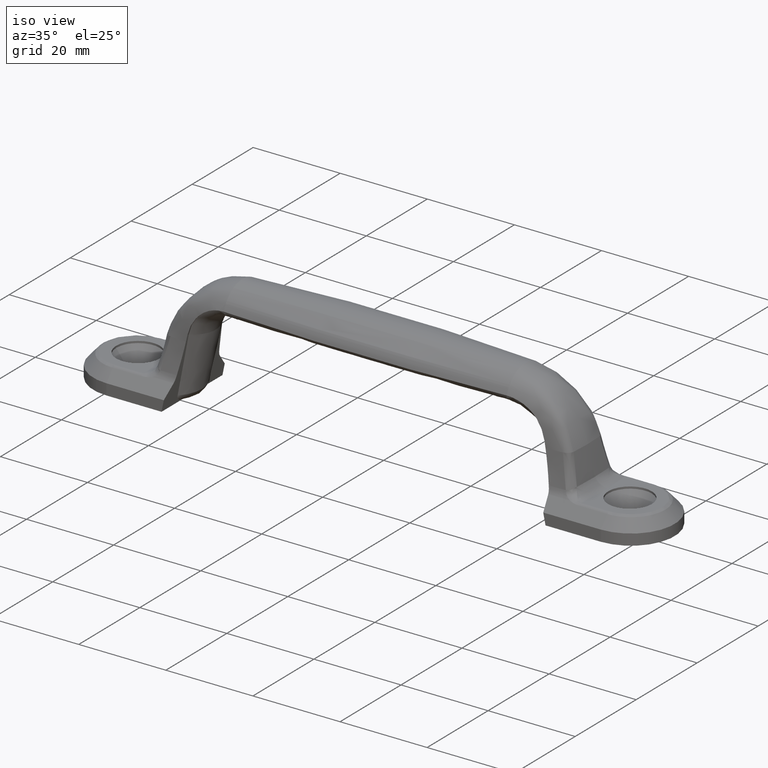
[diagram: clean part render]
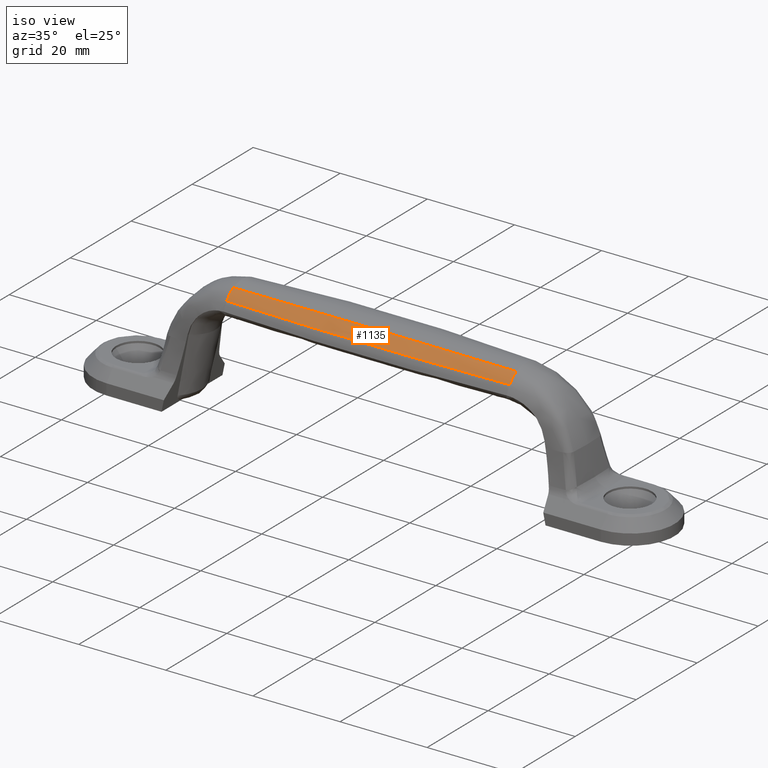
[diagram: same view with one face highlighted and labeled with its STEP entity id]
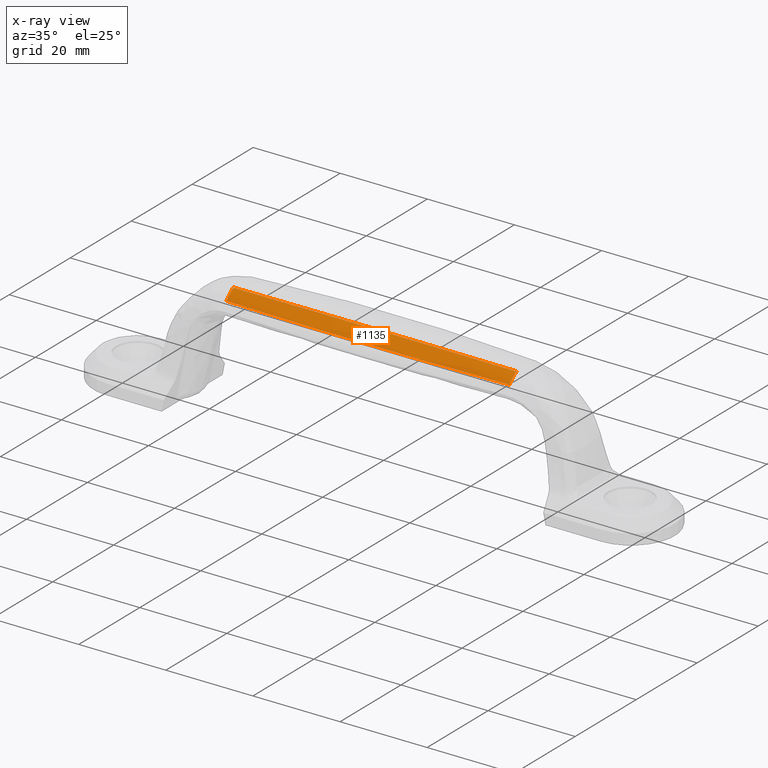
[diagram: x-ray of the same camera — body ghosted, the highlighted face saturated]
A machine part, iso view. The second image highlights one B-rep face of the part: STEP entity #1135.
The next image is the same camera in x-ray: the body ghosted, the highlighted face saturated — about 0% of this face is hidden behind the body in this view.
In plain terms, the highlighted face is a freeform B-spline surface patch.
Its self-contained STEP definition (entity closure, byte-faithful):
#173=FACE_OUTER_BOUND('',#244,.T.);
#244=EDGE_LOOP('',(#746,#747,#748,#749,#750,#751));
#331=B_SPLINE_CURVE_WITH_KNOTS('',3,(#1465,#1466,#1467,#1468,#1469,#1470),
 .UNSPECIFIED.,.F.,.F.,(4,2,4),(0.,0.500078966036565,1.),.UNSPECIFIED.);
#332=B_SPLINE_CURVE_WITH_KNOTS('',3,(#1652,#1653,#1654,#1655),
 .UNSPECIFIED.,.F.,.F.,(4,4),(-1.24084911604125,-1.20932394737796),
 .UNSPECIFIED.);
#333=B_SPLINE_CURVE_WITH_KNOTS('',3,(#1657,#1658,#1659,#1660),
 .UNSPECIFIED.,.F.,.F.,(4,4),(-0.279137287697394,-0.241810773106101),
 .UNSPECIFIED.);
#334=B_SPLINE_CURVE_WITH_KNOTS('',3,(#1662,#1663,#1664,#1665,#1666,#1667,
#1668,#1669,#1670,#1671,#1672,#1673,#1674,#1675,#1676,#1677,#1678,#1679,
#1680,#1681,#1682,#1683,#1684,#1685,#1686,#1687,#1688,#1689),
 .UNSPECIFIED.,.F.,.F.,(4,3,3,3,3,3,3,3,3,4),(-0.643213699019692,-0.63301444263161,
-0.631514593738282,-0.571223606326534,-0.561474232684798,-0.513943022729462,
-0.498386436162403,-0.388662724332843,-0.370313466213393,-0.279137287697394),
 .UNSPECIFIED.);
#335=B_SPLINE_CURVE_WITH_KNOTS('',3,(#1691,#1692,#1693,#1694,#1695,#1696),
 .UNSPECIFIED.,.F.,.F.,(4,2,4),(0.,0.500078966036565,1.),.UNSPECIFIED.);
#336=B_SPLINE_CURVE_WITH_KNOTS('',3,(#1697,#1698,#1699,#1700,#1701,#1702,
#1703,#1704,#1705,#1706,#1707,#1708,#1709,#1710,#1711,#1712,#1713,#1714,
#1715,#1716,#1717,#1718,#1719,#1720,#1721,#1722,#1723,#1724),
 .UNSPECIFIED.,.F.,.F.,(4,3,3,3,3,3,3,3,3,4),(-1.20932394737796,-1.15653111833747,
-1.1441610640321,-1.07019141005032,-1.05970402034835,-1.02766110915708,
-1.02108862101578,-0.98044377403873,-0.979432658922274,-0.972556884731643),
 .UNSPECIFIED.);
#445=VERTEX_POINT('',#1455);
#446=VERTEX_POINT('',#1460);
#447=VERTEX_POINT('',#1651);
#448=VERTEX_POINT('',#1656);
#449=VERTEX_POINT('',#1661);
#450=VERTEX_POINT('',#1690);
#564=EDGE_CURVE('',#445,#446,#331,.T.);
#565=EDGE_CURVE('',#445,#447,#332,.T.);
#566=EDGE_CURVE('',#448,#446,#333,.T.);
#567=EDGE_CURVE('',#449,#448,#334,.T.);
#568=EDGE_CURVE('',#450,#449,#335,.T.);
#569=EDGE_CURVE('',#447,#450,#336,.T.);
#746=ORIENTED_EDGE('',*,*,#565,.F.);
#747=ORIENTED_EDGE('',*,*,#564,.T.);
#748=ORIENTED_EDGE('',*,*,#566,.F.);
#749=ORIENTED_EDGE('',*,*,#567,.F.);
#750=ORIENTED_EDGE('',*,*,#568,.F.);
#751=ORIENTED_EDGE('',*,*,#569,.F.);
#1098=B_SPLINE_SURFACE_WITH_KNOTS('',3,3,((#1471,#1472,#1473,#1474,#1475,
#1476,#1477,#1478,#1479),(#1480,#1481,#1482,#1483,#1484,#1485,#1486,#1487,
#1488),(#1489,#1490,#1491,#1492,#1493,#1494,#1495,#1496,#1497),(#1498,#1499,
#1500,#1501,#1502,#1503,#1504,#1505,#1506),(#1507,#1508,#1509,#1510,#1511,
#1512,#1513,#1514,#1515),(#1516,#1517,#1518,#1519,#1520,#1521,#1522,#1523,
#1524),(#1525,#1526,#1527,#1528,#1529,#1530,#1531,#1532,#1533),(#1534,#1535,
#1536,#1537,#1538,#1539,#1540,#1541,#1542),(#1543,#1544,#1545,#1546,#1547,
#1548,#1549,#1550,#1551),(#1552,#1553,#1554,#1555,#1556,#1557,#1558,#1559,
#1560),(#1561,#1562,#1563,#1564,#1565,#1566,#1567,#1568,#1569),(#1570,#1571,
#1572,#1573,#1574,#1575,#1576,#1577,#1578),(#1579,#1580,#1581,#1582,#1583,
#1584,#1585,#1586,#1587),(#1588,#1589,#1590,#1591,#1592,#1593,#1594,#1595,
#1596),(#1597,#1598,#1599,#1600,#1601,#1602,#1603,#1604,#1605),(#1606,#1607,
#1608,#1609,#1610,#1611,#1612,#1613,#1614),(#1615,#1616,#1617,#1618,#1619,
#1620,#1621,#1622,#1623),(#1624,#1625,#1626,#1627,#1628,#1629,#1630,#1631,
#1632),(#1633,#1634,#1635,#1636,#1637,#1638,#1639,#1640,#1641),(#1642,#1643,
#1644,#1645,#1646,#1647,#1648,#1649,#1650)),.UNSPECIFIED.,.F.,.F.,.F.,(4,
2,2,2,2,2,2,2,2,4),(4,1,1,1,1,1,4),(0.,0.402703619118218,0.442864616248595,
0.683016760124667,0.717065440698619,0.821096937459581,0.842435378736054,
0.974394183646222,0.97767690094786,1.),(0.,0.857142857142857,0.928571428571429,
0.964285714285714,0.982142857142857,0.991071428571429,1.),.UNSPECIFIED.);
#1135=ADVANCED_FACE('',(#173),#1098,.F.);
#1455=CARTESIAN_POINT('',(-32.5,-5.07507610056238,24.2607109973416));
#1460=CARTESIAN_POINT('',(32.5,-5.07502799536452,24.2607864557729));
#1465=CARTESIAN_POINT('Ctrl Pts',(-32.5,-5.07507610056238,24.2607109973416));
#1466=CARTESIAN_POINT('Ctrl Pts',(-21.668378137966,-5.82075768503204,24.4772932472976));
#1467=CARTESIAN_POINT('Ctrl Pts',(-10.8350448046326,-6.19353558371479,24.5855735598226));
#1468=CARTESIAN_POINT('Ctrl Pts',(10.8316229428774,-6.19328404923183,24.5855303168405));
#1469=CARTESIAN_POINT('Ctrl Pts',(21.6649562762108,-5.82049011548313,24.4772751571259));
#1470=CARTESIAN_POINT('Ctrl Pts',(32.5,-5.07502799536452,24.2607864557729));
#1471=CARTESIAN_POINT('Ctrl Pts',(-32.5,-5.07507610056238,24.2607109973416));
#1472=CARTESIAN_POINT('Ctrl Pts',(-13.9344374771483,-6.35318553375218,24.631936226039));
#1473=CARTESIAN_POINT('Ctrl Pts',(6.18370230104813,-6.55097542152328,24.6894077691117));
#1474=CARTESIAN_POINT('Ctrl Pts',(27.0817446118437,-5.4211903647126,24.3613144946305));
#1475=CARTESIAN_POINT('Ctrl Pts',(29.7908417535855,-5.25476607158821,24.3129838276452));
#1476=CARTESIAN_POINT('Ctrl Pts',(31.1454132387087,-5.16656125636377,24.2873684798199));
#1477=CARTESIAN_POINT('Ctrl Pts',(31.9194606342797,-5.11473202804632,24.2723168483961));
#1478=CARTESIAN_POINT('Ctrl Pts',(32.3064865143749,-5.08834192163404,24.2646529360812));
#1479=CARTESIAN_POINT('Ctrl Pts',(32.5,-5.07502799536452,24.2607864557729));
#1480=CARTESIAN_POINT('Ctrl Pts',(-32.5,-5.04173371207766,24.3063462800652));
#1481=CARTESIAN_POINT('Ctrl Pts',(-13.9344374771483,-6.31722405197311,24.6850886618715));
#1482=CARTESIAN_POINT('Ctrl Pts',(6.18370230104812,-6.50949557725588,24.7483837370907));
#1483=CARTESIAN_POINT('Ctrl Pts',(27.0817446118437,-5.38460313676927,24.4122302801106));
#1484=CARTESIAN_POINT('Ctrl Pts',(29.7908417535855,-5.2184749152625,24.3630792737212));
#1485=CARTESIAN_POINT('Ctrl Pts',(31.1454132387087,-5.13046904629267,24.3369919724025));
#1486=CARTESIAN_POINT('Ctrl Pts',(31.9194606342797,-5.07873268625842,24.3216840634606));
#1487=CARTESIAN_POINT('Ctrl Pts',(32.3064865143749,-5.05239557417446,24.31388435012));
#1488=CARTESIAN_POINT('Ctrl Pts',(32.5,-5.0391047484711,24.3099526571025));
#1489=CARTESIAN_POINT('Ctrl Pts',(-32.4999999999997,-4.89311689233879,24.5171092322514));
#1490=CARTESIAN_POINT('Ctrl Pts',(-13.9344374771481,-6.06624624827705,25.0404355499634));
#1491=CARTESIAN_POINT('Ctrl Pts',(6.18370230104794,-6.23346579406163,25.1370373168044));
#1492=CARTESIAN_POINT('Ctrl Pts',(27.0817446118435,-5.16601300837879,24.7170159305337));
#1493=CARTESIAN_POINT('Ctrl Pts',(29.7908417535853,-5.00892192531027,24.6546257400535));
#1494=CARTESIAN_POINT('Ctrl Pts',(31.1454132387084,-4.925732670116,24.6214960180085));
#1495=CARTESIAN_POINT('Ctrl Pts',(31.9194606342794,-4.87685756752391,24.6020013776156));
#1496=CARTESIAN_POINT('Ctrl Pts',(32.3064865143747,-4.85198056326455,24.5920676580817));
#1497=CARTESIAN_POINT('Ctrl Pts',(32.4999999999997,-4.83942908190163,24.5870544216826));
#1498=CARTESIAN_POINT('Ctrl Pts',(-32.4999999999997,-4.5958018772032,24.8414544805143));
#1499=CARTESIAN_POINT('Ctrl Pts',(-13.934437477148,-5.66283733269778,25.4398092396288));
#1500=CARTESIAN_POINT('Ctrl Pts',(6.18370230104794,-5.80460018405846,25.5575723468259));
#1501=CARTESIAN_POINT('Ctrl Pts',(27.0817446118435,-4.81102928860422,25.0813851371172));
#1502=CARTESIAN_POINT('Ctrl Pts',(29.7908417535853,-4.66518160374403,25.0107473476606));
#1503=CARTESIAN_POINT('Ctrl Pts',(31.1454132387084,-4.58799258796904,24.9731886350253));
#1504=CARTESIAN_POINT('Ctrl Pts',(31.9194606342794,-4.54266686952282,24.951089439009));
#1505=CARTESIAN_POINT('Ctrl Pts',(32.3064865143747,-4.51959745740989,24.9398267321431));
#1506=CARTESIAN_POINT('Ctrl Pts',(32.4999999999997,-4.50796143966611,24.9341422851123));
#1507=CARTESIAN_POINT('Ctrl Pts',(-32.4999999999997,-4.56755498308583,24.8716086540736));
#1508=CARTESIAN_POINT('Ctrl Pts',(-13.934437477148,-5.62612797963354,25.4761368286468));
#1509=CARTESIAN_POINT('Ctrl Pts',(6.18370230104795,-5.76537381453385,25.5953489486279));
#1510=CARTESIAN_POINT('Ctrl Pts',(27.0817446118435,-4.77795691245379,25.1148047035937));
#1511=CARTESIAN_POINT('Ctrl Pts',(29.7908417535853,-4.63296403129764,25.0435413501402));
#1512=CARTESIAN_POINT('Ctrl Pts',(31.1454132387084,-4.55623559887364,25.0056486421688));
#1513=CARTESIAN_POINT('Ctrl Pts',(31.9194606342794,-4.51117715003219,24.9833545807057));
#1514=CARTESIAN_POINT('Ctrl Pts',(32.3064865143747,-4.488245246987,24.9719918546359));
#1515=CARTESIAN_POINT('Ctrl Pts',(32.4999999999997,-4.47667788795121,24.9662573477211));
#1516=CARTESIAN_POINT('Ctrl Pts',(-32.4999999999997,-4.36238590655552,25.0867169765621));
#1517=CARTESIAN_POINT('Ctrl Pts',(-13.934437477148,-5.35457510934838,25.7343723356362));
#1518=CARTESIAN_POINT('Ctrl Pts',(6.1837023010479,-5.48073932043276,25.86114707891));
#1519=CARTESIAN_POINT('Ctrl Pts',(27.0817446118435,-4.53854853578098,25.3504906695955));
#1520=CARTESIAN_POINT('Ctrl Pts',(29.7908417535853,-4.40063289109933,25.2744836196896));
#1521=CARTESIAN_POINT('Ctrl Pts',(31.1454132387084,-4.32765853785778,25.2340808673203));
#1522=CARTESIAN_POINT('Ctrl Pts',(31.9194606342794,-4.28483098433276,25.2102933870211));
#1523=CARTESIAN_POINT('Ctrl Pts',(32.3064865143747,-4.26303278118869,25.1981725806074));
#1524=CARTESIAN_POINT('Ctrl Pts',(32.4999999999997,-4.25204099089454,25.1920528477446));
#1525=CARTESIAN_POINT('Ctrl Pts',(-32.4999999999997,-4.14142375767856,25.2946081605217));
#1526=CARTESIAN_POINT('Ctrl Pts',(-13.9344374771481,-5.10443412507045,25.9407515765121));
#1527=CARTESIAN_POINT('Ctrl Pts',(6.18370230104794,-5.22290638691858,26.0669823052151));
#1528=CARTESIAN_POINT('Ctrl Pts',(27.0817446118434,-4.30254441891716,25.554198397102));
#1529=CARTESIAN_POINT('Ctrl Pts',(29.7908417535852,-4.16776584087077,25.4780312599691));
#1530=CARTESIAN_POINT('Ctrl Pts',(31.1454132387084,-4.09647311150319,25.4375412323539));
#1531=CARTESIAN_POINT('Ctrl Pts',(31.9194606342794,-4.05462878232406,25.4137118877975));
#1532=CARTESIAN_POINT('Ctrl Pts',(32.3064865143746,-4.03333398851747,25.4015683529567));
#1533=CARTESIAN_POINT('Ctrl Pts',(32.4999999999997,-4.02259507248451,25.3954386457257));
#1534=CARTESIAN_POINT('Ctrl Pts',(-32.4999999999996,-3.8538065553924,25.5225325422643));
#1535=CARTESIAN_POINT('Ctrl Pts',(-13.9344374771479,-4.798145535602,26.1597262078394));
#1536=CARTESIAN_POINT('Ctrl Pts',(6.18370230104786,-4.91554011111485,26.2803265012234));
#1537=CARTESIAN_POINT('Ctrl Pts',(27.0817446118434,-4.01945725793065,25.7639594025546));
#1538=CARTESIAN_POINT('Ctrl Pts',(29.7908417535852,-3.88803544787158,25.6874536431348));
#1539=CARTESIAN_POINT('Ctrl Pts',(31.1454132387083,-3.81851851192134,25.6468010650476));
#1540=CARTESIAN_POINT('Ctrl Pts',(31.9194606342793,-3.77770448531745,25.6228873493495));
#1541=CARTESIAN_POINT('Ctrl Pts',(32.3064865143746,-3.75693521146418,25.6107018237375));
#1542=CARTESIAN_POINT('Ctrl Pts',(32.4999999999996,-3.74645957576353,25.6045521925117));
#1543=CARTESIAN_POINT('Ctrl Pts',(-32.4999999999996,-3.81754354589619,25.5506589602592));
#1544=CARTESIAN_POINT('Ctrl Pts',(-13.934437477148,-4.75892730231572,26.1871793000253));
#1545=CARTESIAN_POINT('Ctrl Pts',(6.18370230104788,-4.87660513051316,26.3068156416537));
#1546=CARTESIAN_POINT('Ctrl Pts',(27.0817446118434,-3.98389773795108,25.789766486099));
#1547=CARTESIAN_POINT('Ctrl Pts',(29.7908417535852,-3.85299689530265,25.713152958301));
#1548=CARTESIAN_POINT('Ctrl Pts',(31.1454132387083,-3.78375144011567,25.6724480969149));
#1549=CARTESIAN_POINT('Ctrl Pts',(31.9194606342793,-3.74309837489162,25.6485032322688));
#1550=CARTESIAN_POINT('Ctrl Pts',(32.3064865143746,-3.72241038683334,25.6363024163883));
#1551=CARTESIAN_POINT('Ctrl Pts',(32.4999999999996,-3.71197605119927,25.6301449333602));
#1552=CARTESIAN_POINT('Ctrl Pts',(-32.4999999999996,-3.66840183165841,25.6636956040949));
#1553=CARTESIAN_POINT('Ctrl Pts',(-13.934437477148,-4.60042613977692,26.295848558825));
#1554=CARTESIAN_POINT('Ctrl Pts',(6.18370230104788,-4.71883544027294,26.4119660421296));
#1555=CARTESIAN_POINT('Ctrl Pts',(27.0817446118434,-3.83954767637493,25.8923259558678));
#1556=CARTESIAN_POINT('Ctrl Pts',(29.7908417535852,-3.7105559509194,25.8154053245605));
#1557=CARTESIAN_POINT('Ctrl Pts',(31.1454132387083,-3.64231264680933,25.7745506864613));
#1558=CARTESIAN_POINT('Ctrl Pts',(31.9194606342793,-3.6022444069357,25.7505222373118));
#1559=CARTESIAN_POINT('Ctrl Pts',(32.3064865143746,-3.58185350229728,25.7382799125096));
#1560=CARTESIAN_POINT('Ctrl Pts',(32.4999999999996,-3.5715686274327,25.7321018979335));
#1561=CARTESIAN_POINT('Ctrl Pts',(-32.4999999999997,-3.55126698623695,25.7464213599264));
#1562=CARTESIAN_POINT('Ctrl Pts',(-13.934437477148,-4.47738266775418,26.3749132463242));
#1563=CARTESIAN_POINT('Ctrl Pts',(6.1837023010479,-4.59773565995078,26.4876574986917));
#1564=CARTESIAN_POINT('Ctrl Pts',(27.0817446118434,-3.72932643793442,25.9655679367751));
#1565=CARTESIAN_POINT('Ctrl Pts',(29.7908417535852,-3.60190022927964,25.8883300003806));
#1566=CARTESIAN_POINT('Ctrl Pts',(31.1454132387084,-3.53447246814034,25.8473209308478));
#1567=CARTESIAN_POINT('Ctrl Pts',(31.9194606342794,-3.49488126004612,25.8232043287913));
#1568=CARTESIAN_POINT('Ctrl Pts',(32.3064865143746,-3.47473185467436,25.8109184075808));
#1569=CARTESIAN_POINT('Ctrl Pts',(32.4999999999997,-3.46456874773853,25.8047185405992));
#1570=CARTESIAN_POINT('Ctrl Pts',(-32.4999999999997,-3.40806840890203,25.8404599149579));
#1571=CARTESIAN_POINT('Ctrl Pts',(-13.934437477148,-4.32951878482437,26.4641624189154));
#1572=CARTESIAN_POINT('Ctrl Pts',(6.18370230104791,-4.45335264261645,26.5727409246367));
#1573=CARTESIAN_POINT('Ctrl Pts',(27.0817446118434,-3.59842650362318,26.0473244781119));
#1574=CARTESIAN_POINT('Ctrl Pts',(29.7908417535852,-3.47288496169583,25.9696762164579));
#1575=CARTESIAN_POINT('Ctrl Pts',(31.1454132387084,-3.40643662840475,25.9284656073516));
#1576=CARTESIAN_POINT('Ctrl Pts',(31.9194606342794,-3.36741492249587,25.9042353036865));
#1577=CARTESIAN_POINT('Ctrl Pts',(32.3064865143746,-3.34755385540617,25.8918928481153));
#1578=CARTESIAN_POINT('Ctrl Pts',(32.4999999999997,-3.33753569365922,25.8856648592488));
#1579=CARTESIAN_POINT('Ctrl Pts',(-32.4999999999997,-3.38358564539485,25.8562968991055));
#1580=CARTESIAN_POINT('Ctrl Pts',(-13.934437477148,-4.30431438408845,26.4791757086978));
#1581=CARTESIAN_POINT('Ctrl Pts',(6.1837023010479,-4.42882925707208,26.5870109888866));
#1582=CARTESIAN_POINT('Ctrl Pts',(27.0817446118434,-3.57620785734088,26.061018801933));
#1583=CARTESIAN_POINT('Ctrl Pts',(29.7908417535852,-3.45099110854746,25.983297678538));
#1584=CARTESIAN_POINT('Ctrl Pts',(31.1454132387084,-3.38471111530679,25.9420513918318));
#1585=CARTESIAN_POINT('Ctrl Pts',(31.9194606342794,-3.34578745565071,25.9178008329393));
#1586=CARTESIAN_POINT('Ctrl Pts',(32.3064865143746,-3.32597596392231,25.905448327674));
#1587=CARTESIAN_POINT('Ctrl Pts',(32.4999999999997,-3.31598275397107,25.8992153201816));
#1588=CARTESIAN_POINT('Ctrl Pts',(-32.4999999999997,-3.20823889880717,25.968049710304));
#1589=CARTESIAN_POINT('Ctrl Pts',(-13.9344374771481,-4.1237627915626,26.5853565596351));
#1590=CARTESIAN_POINT('Ctrl Pts',(6.18370230104793,-4.25309879114431,26.688053034025));
#1591=CARTESIAN_POINT('Ctrl Pts',(27.0817446118435,-3.41722970047828,26.1577625350397));
#1592=CARTESIAN_POINT('Ctrl Pts',(29.7908417535853,-3.29436009784924,26.0794988581493));
#1593=CARTESIAN_POINT('Ctrl Pts',(31.1454132387084,-3.22929755908397,26.0379852034872));
#1594=CARTESIAN_POINT('Ctrl Pts',(31.9194606342794,-3.19108211131287,26.0135829168977));
#1595=CARTESIAN_POINT('Ctrl Pts',(32.3064865143747,-3.17162892058814,26.0011549206802));
#1596=CARTESIAN_POINT('Ctrl Pts',(32.4999999999997,-3.16181589800852,25.9948842535606));
#1597=CARTESIAN_POINT('Ctrl Pts',(-32.5,-3.0604354914504,26.0531109134454));
#1598=CARTESIAN_POINT('Ctrl Pts',(-13.9344374771484,-3.97025116363031,26.6680258344513));
#1599=CARTESIAN_POINT('Ctrl Pts',(6.18370230104816,-4.10366891889554,26.7671953685982));
#1600=CARTESIAN_POINT('Ctrl Pts',(27.0817446118438,-3.28352642220966,26.2322788175925));
#1601=CARTESIAN_POINT('Ctrl Pts',(29.7908417535856,-3.16287023620671,26.1533975498812));
#1602=CARTESIAN_POINT('Ctrl Pts',(31.1454132387087,-3.09895733015402,26.111571564065));
#1603=CARTESIAN_POINT('Ctrl Pts',(31.9194606342797,-3.06141129339884,26.0869895416092));
#1604=CARTESIAN_POINT('Ctrl Pts',(32.306486514375,-3.04229687366648,26.0744713571231));
#1605=CARTESIAN_POINT('Ctrl Pts',(32.5,-3.03265429137559,26.0681554772944));
#1606=CARTESIAN_POINT('Ctrl Pts',(-32.5,-2.92020633264454,26.1276897215886));
#1607=CARTESIAN_POINT('Ctrl Pts',(-13.9344374771483,-3.82339070707217,26.7417040866983));
#1608=CARTESIAN_POINT('Ctrl Pts',(6.18370230104811,-3.96058052632355,26.8381049574679));
#1609=CARTESIAN_POINT('Ctrl Pts',(27.0817446118437,-3.15663159278499,26.2983312593929));
#1610=CARTESIAN_POINT('Ctrl Pts',(29.7908417535855,-3.03826012713785,26.2187898350224));
#1611=CARTESIAN_POINT('Ctrl Pts',(31.1454132387087,-2.97553544997873,26.1766263981483));
#1612=CARTESIAN_POINT('Ctrl Pts',(31.9194606342797,-2.93868164473687,26.1518493792651));
#1613=CARTESIAN_POINT('Ctrl Pts',(32.3064865143749,-2.91991770009606,26.1392329906653));
#1614=CARTESIAN_POINT('Ctrl Pts',(32.5,-2.91045146645269,26.1328678280024));
#1615=CARTESIAN_POINT('Ctrl Pts',(-32.5,-2.91680956988872,26.1294927478211));
#1616=CARTESIAN_POINT('Ctrl Pts',(-13.9344374771483,-3.81983339462369,26.7434859981527));
#1617=CARTESIAN_POINT('Ctrl Pts',(6.18370230104813,-3.95711386963441,26.8398206598798));
#1618=CARTESIAN_POINT('Ctrl Pts',(27.0817446118437,-3.15355795455472,26.2999287158047));
#1619=CARTESIAN_POINT('Ctrl Pts',(29.7908417535855,-3.03524185235247,26.2203712342408));
#1620=CARTESIAN_POINT('Ctrl Pts',(31.1454132387087,-2.97254597528006,26.1781995827235));
#1621=CARTESIAN_POINT('Ctrl Pts',(31.9194606342797,-2.93570894289362,26.1534178173261));
#1622=CARTESIAN_POINT('Ctrl Pts',(32.3064865143749,-2.91695349153441,26.1407990379764));
#1623=CARTESIAN_POINT('Ctrl Pts',(32.5,-2.90749153059265,26.1344326754983));
#1624=CARTESIAN_POINT('Ctrl Pts',(-32.5,-2.89036722969669,26.1434970607677));
#1625=CARTESIAN_POINT('Ctrl Pts',(-13.9344374771483,-3.79213205032792,26.75733326375));
#1626=CARTESIAN_POINT('Ctrl Pts',(6.18370230104809,-3.93012072163987,26.8531530242102));
#1627=CARTESIAN_POINT('Ctrl Pts',(27.0817446118437,-3.12963031679331,26.3123395760022));
#1628=CARTESIAN_POINT('Ctrl Pts',(29.7908417535855,-3.01174649126641,26.2326568228424));
#1629=CARTESIAN_POINT('Ctrl Pts',(31.1454132387087,-2.94927546469174,26.1904210902017));
#1630=CARTESIAN_POINT('Ctrl Pts',(31.9194606342797,-2.91256941066156,26.1656022918327));
#1631=CARTESIAN_POINT('Ctrl Pts',(32.3064865143749,-2.89388027796249,26.1529648583415));
#1632=CARTESIAN_POINT('Ctrl Pts',(32.5,-2.88445168423404,26.1465891341345));
#1633=CARTESIAN_POINT('Ctrl Pts',(-32.5,-2.86763437675816,26.1553584903518));
#1634=CARTESIAN_POINT('Ctrl Pts',(-13.9344374771484,-3.76828362078611,26.7690997586281));
#1635=CARTESIAN_POINT('Ctrl Pts',(6.18370230104815,-3.90687919281193,26.8644923684886));
#1636=CARTESIAN_POINT('Ctrl Pts',(27.0817446118437,-3.10905932649309,26.3228733509483));
#1637=CARTESIAN_POINT('Ctrl Pts',(29.7908417535855,-2.99155227828477,26.2430806493757));
#1638=CARTESIAN_POINT('Ctrl Pts',(31.1454132387087,-2.92927726806012,26.200788591167));
#1639=CARTESIAN_POINT('Ctrl Pts',(31.9194606342797,-2.89268540836124,26.1759372129243));
#1640=CARTESIAN_POINT('Ctrl Pts',(32.3064865143749,-2.87405409894338,26.1632833612428));
#1641=CARTESIAN_POINT('Ctrl Pts',(32.5,-2.86465459922658,26.1568993947281));
#1642=CARTESIAN_POINT('Ctrl Pts',(-32.5,-2.84525939019083,26.166870503008));
#1643=CARTESIAN_POINT('Ctrl Pts',(-13.9344374771483,-3.74477987827845,26.7805538467098));
#1644=CARTESIAN_POINT('Ctrl Pts',(6.18370230104813,-3.88396987783578,26.8755416920095));
#1645=CARTESIAN_POINT('Ctrl Pts',(27.0817446118437,-3.08881149355975,26.3331176668002));
#1646=CARTESIAN_POINT('Ctrl Pts',(29.7908417535855,-2.97168003722736,26.2532148585233));
#1647=CARTESIAN_POINT('Ctrl Pts',(31.1454132387087,-2.90960046669071,26.2108663086882));
#1648=CARTESIAN_POINT('Ctrl Pts',(31.9194606342797,-2.87312247142106,26.1859822385833));
#1649=CARTESIAN_POINT('Ctrl Pts',(32.3064865143749,-2.85454882213191,26.1733119039407));
#1650=CARTESIAN_POINT('Ctrl Pts',(32.5,-2.84517833457376,26.1669196617219));
#1651=CARTESIAN_POINT('',(-32.5,-4.90165997440245,24.4871981213121));
#1652=CARTESIAN_POINT('Ctrl Pts',(-32.5,-5.07507610056238,24.2607109973416));
#1653=CARTESIAN_POINT('Ctrl Pts',(-32.5,-5.05592490783772,24.2869229795721));
#1654=CARTESIAN_POINT('Ctrl Pts',(-32.4999999999999,-4.99874328589265,24.3676125773285));
#1655=CARTESIAN_POINT('Ctrl Pts',(-32.4999999999998,-4.90230674317749,24.4874385755775));
#1656=CARTESIAN_POINT('',(32.5,-4.90225552824342,24.4864643423548));
#1657=CARTESIAN_POINT('Ctrl Pts',(32.5,-4.90225552824694,24.4864643423504));
#1658=CARTESIAN_POINT('Ctrl Pts',(32.5,-4.96060689535379,24.4136742588247));
#1659=CARTESIAN_POINT('Ctrl Pts',(32.5,-5.01824639181522,24.3385003595384));
#1660=CARTESIAN_POINT('Ctrl Pts',(32.5,-5.07502799542826,24.2607864556856));
#1661=CARTESIAN_POINT('',(32.5,-2.84517833457376,26.1669196617219));
#1662=CARTESIAN_POINT('Ctrl Pts',(32.5,-2.84517833457376,26.1669196617219));
#1663=CARTESIAN_POINT('Ctrl Pts',(32.5,-2.86465459922658,26.1568993947281));
#1664=CARTESIAN_POINT('Ctrl Pts',(32.5,-2.88445168423404,26.1465891341345));
#1665=CARTESIAN_POINT('Ctrl Pts',(32.5,-2.90453777581977,26.1359911580142));
#1666=CARTESIAN_POINT('Ctrl Pts',(32.5,-2.90749153059265,26.1344326754983));
#1667=CARTESIAN_POINT('Ctrl Pts',(32.5,-2.91045146645269,26.1328678280024));
#1668=CARTESIAN_POINT('Ctrl Pts',(32.5,-2.91341769547114,26.1312970651936));
#1669=CARTESIAN_POINT('Ctrl Pts',(32.5,-3.03265429137559,26.0681554772944));
#1670=CARTESIAN_POINT('Ctrl Pts',(32.4999999999997,-3.16181589800852,25.9948842535606));
#1671=CARTESIAN_POINT('Ctrl Pts',(32.4999999999997,-3.29452326605091,25.9125321015829));
#1672=CARTESIAN_POINT('Ctrl Pts',(32.4999999999997,-3.31598275397107,25.8992153201816));
#1673=CARTESIAN_POINT('Ctrl Pts',(32.4999999999997,-3.33753569365922,25.8856648592488));
#1674=CARTESIAN_POINT('Ctrl Pts',(32.4999999999997,-3.35915720362466,25.8718874873039));
#1675=CARTESIAN_POINT('Ctrl Pts',(32.4999999999997,-3.46456874773853,25.8047185405992));
#1676=CARTESIAN_POINT('Ctrl Pts',(32.4999999999996,-3.5715686274327,25.7321018979335));
#1677=CARTESIAN_POINT('Ctrl Pts',(32.4999999999996,-3.67735350352942,25.6552861244134));
#1678=CARTESIAN_POINT('Ctrl Pts',(32.4999999999996,-3.71197605119927,25.6301449333602));
#1679=CARTESIAN_POINT('Ctrl Pts',(32.4999999999996,-3.74645957576353,25.6045521925117));
#1680=CARTESIAN_POINT('Ctrl Pts',(32.4999999999996,-3.7807484928076,25.5785856755529));
#1681=CARTESIAN_POINT('Ctrl Pts',(32.4999999999997,-4.02259507248451,25.3954386457257));
#1682=CARTESIAN_POINT('Ctrl Pts',(32.4999999999997,-4.25204099089454,25.1920528477446));
#1683=CARTESIAN_POINT('Ctrl Pts',(32.4999999999997,-4.44449373223993,24.9986074986842));
#1684=CARTESIAN_POINT('Ctrl Pts',(32.4999999999997,-4.47667788795121,24.9662573477211));
#1685=CARTESIAN_POINT('Ctrl Pts',(32.4999999999997,-4.50796143966611,24.9341422851123));
#1686=CARTESIAN_POINT('Ctrl Pts',(32.4999999999997,-4.53802044763427,24.9026667637549));
#1687=CARTESIAN_POINT('Ctrl Pts',(32.4999999999997,-4.68738155306305,24.7462671024994));
#1688=CARTESIAN_POINT('Ctrl Pts',(32.4999999999998,-4.81176076377123,24.5993242300737));
#1689=CARTESIAN_POINT('Ctrl Pts',(32.4999999999999,-4.90361109601439,24.4848887740262));
#1690=CARTESIAN_POINT('',(-32.5,-2.84525939019083,26.166870503008));
#1691=CARTESIAN_POINT('Ctrl Pts',(-32.5,-2.84525939019083,26.166870503008));
#1692=CARTESIAN_POINT('Ctrl Pts',(-21.668378137966,-3.37006254837399,26.5249089970757));
#1693=CARTESIAN_POINT('Ctrl Pts',(-10.8350448046326,-3.63241592907172,26.7039040690822));
#1694=CARTESIAN_POINT('Ctrl Pts',(10.8316229428774,-3.6322231659398,26.7038073842428));
#1695=CARTESIAN_POINT('Ctrl Pts',(21.6649562762108,-3.36984276670305,26.5248286984742));
#1696=CARTESIAN_POINT('Ctrl Pts',(32.5,-2.84517833457376,26.1669196617219));
#1697=CARTESIAN_POINT('Ctrl Pts',(-32.4999999999998,-4.90230674317749,24.4874385755775));
#1698=CARTESIAN_POINT('Ctrl Pts',(-32.4999999999998,-4.8308464495148,24.5762306535825));
#1699=CARTESIAN_POINT('Ctrl Pts',(-32.4999999999997,-4.7378315327373,24.6865122759846));
#1700=CARTESIAN_POINT('Ctrl Pts',(-32.4999999999997,-4.62276376810978,24.8120413639391));
#1701=CARTESIAN_POINT('Ctrl Pts',(-32.4999999999997,-4.5958018772032,24.8414544805143));
#1702=CARTESIAN_POINT('Ctrl Pts',(-32.4999999999997,-4.56755498308583,24.8716086540736));
#1703=CARTESIAN_POINT('Ctrl Pts',(-32.4999999999997,-4.5381600190674,24.9024276327742));
#1704=CARTESIAN_POINT('Ctrl Pts',(-32.4999999999997,-4.36238590655552,25.0867169765621));
#1705=CARTESIAN_POINT('Ctrl Pts',(-32.4999999999997,-4.14142375767856,25.2946081605217));
#1706=CARTESIAN_POINT('Ctrl Pts',(-32.4999999999996,-3.88952120456553,25.4942302040619));
#1707=CARTESIAN_POINT('Ctrl Pts',(-32.4999999999996,-3.8538065553924,25.5225325422643));
#1708=CARTESIAN_POINT('Ctrl Pts',(-32.4999999999996,-3.81754354589619,25.5506589602592));
#1709=CARTESIAN_POINT('Ctrl Pts',(-32.4999999999996,-3.78076724182166,25.5785322484705));
#1710=CARTESIAN_POINT('Ctrl Pts',(-32.4999999999996,-3.66840183165841,25.6636956040949));
#1711=CARTESIAN_POINT('Ctrl Pts',(-32.4999999999997,-3.55126698623695,25.7464213599264));
#1712=CARTESIAN_POINT('Ctrl Pts',(-32.4999999999997,-3.43244135253723,25.8244541944824));
#1713=CARTESIAN_POINT('Ctrl Pts',(-32.4999999999997,-3.40806840890203,25.8404599149579));
#1714=CARTESIAN_POINT('Ctrl Pts',(-32.4999999999997,-3.38358564539485,25.8562968991055));
#1715=CARTESIAN_POINT('Ctrl Pts',(-32.4999999999997,-3.35917799067073,25.8718525001261));
#1716=CARTESIAN_POINT('Ctrl Pts',(-32.4999999999997,-3.20823889880717,25.968049710304));
#1717=CARTESIAN_POINT('Ctrl Pts',(-32.5,-3.0604354914504,26.0531109134454));
#1718=CARTESIAN_POINT('Ctrl Pts',(-32.5,-2.92361011484306,26.1258794702706));
#1719=CARTESIAN_POINT('Ctrl Pts',(-32.5,-2.92020633264454,26.1276897215886));
#1720=CARTESIAN_POINT('Ctrl Pts',(-32.5,-2.91680956988872,26.1294927478211));
#1721=CARTESIAN_POINT('Ctrl Pts',(-32.5,-2.91341960854381,26.1312881289865));
#1722=CARTESIAN_POINT('Ctrl Pts',(-32.5,-2.89036722969669,26.1434970607677));
#1723=CARTESIAN_POINT('Ctrl Pts',(-32.5,-2.86763437675816,26.1553584903518));
#1724=CARTESIAN_POINT('Ctrl Pts',(-32.5,-2.84525939019083,26.166870503008));